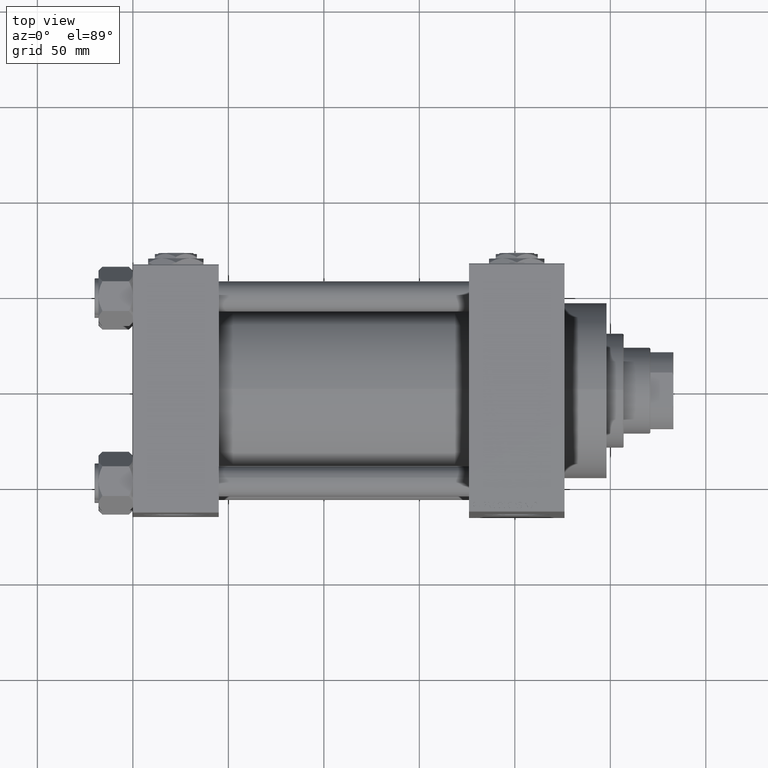
[diagram: clean part render]
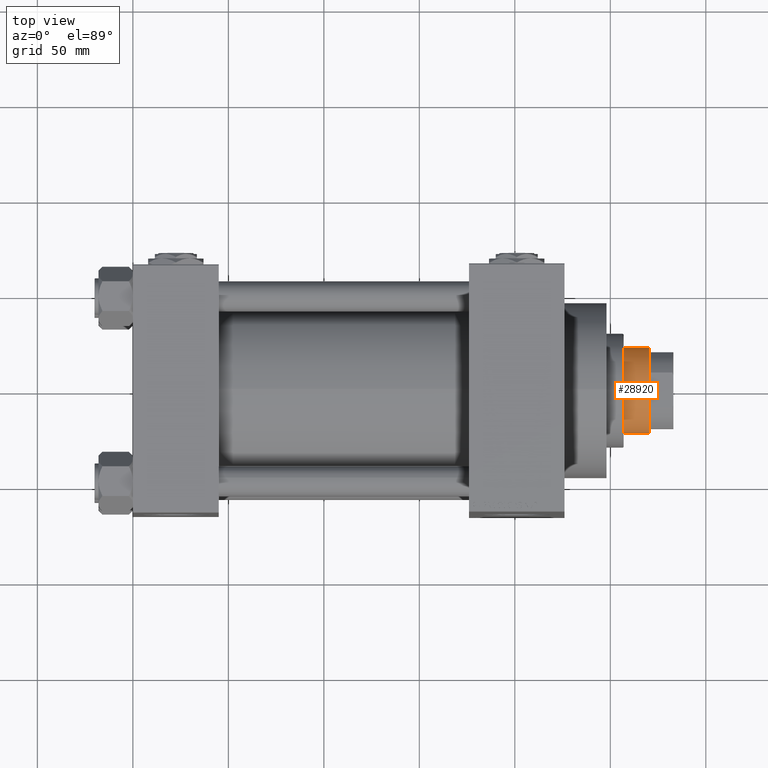
[diagram: same view with one face highlighted and labeled with its STEP entity id]
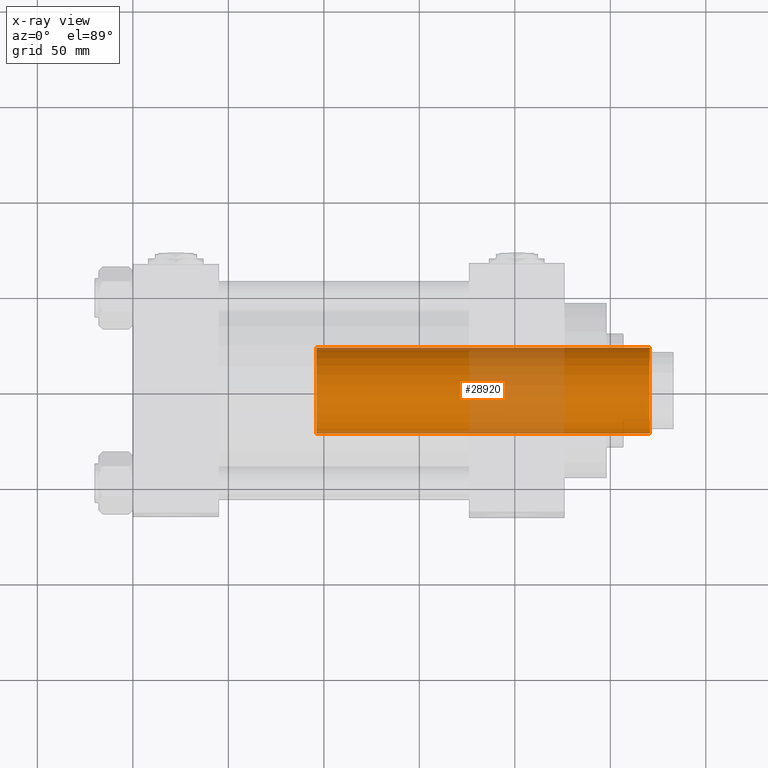
[diagram: x-ray of the same camera — body ghosted, the highlighted face saturated]
A machine part, top view. The second image highlights one B-rep face of the part: STEP entity #28920.
The next image is the same camera in x-ray: the body ghosted, the highlighted face saturated — about 31% of this face is hidden behind the body in this view.
In plain terms, the highlighted cylindrical surface (partial cylindrical patch) has radius 22.5 mm, axis along (-1, 0, 0).
Its self-contained STEP definition (entity closure, byte-faithful):
#2 = ORIENTED_EDGE ( 'NONE', *, *, #2223, .T. ) ;
#178 = DIRECTION ( 'NONE',  ( -0.000000000000000000, -0.000000000000000000, -1.000000000000000000 ) ) ;
#1448 = LINE ( 'NONE', #36069, #4937 ) ;
#2223 = EDGE_CURVE ( 'NONE', #11850, #21926, #45182, .T. ) ;
#2547 = CARTESIAN_POINT ( 'NONE',  ( 0.000000000000000000, 0.000000000000000000, 225.4999999999999716 ) ) ;
#4937 = VECTOR ( 'NONE', #47451, 1000.000000000000000 ) ;
#5231 = LINE ( 'NONE', #12803, #45510 ) ;
#7483 = CARTESIAN_POINT ( 'NONE',  ( 0.000000000000000000, 0.000000000000000000, 225.9999999999999716 ) ) ;
#10090 = CARTESIAN_POINT ( 'NONE',  ( 22.50000000000000355, 2.755455298081545172E-15, 225.4999999999999716 ) ) ;
#10990 = CARTESIAN_POINT ( 'NONE',  ( 22.50000000000000355, 2.755455298081545172E-15, 51.00000000000000000 ) ) ;
#11850 = VERTEX_POINT ( 'NONE', #20935 ) ;
#12803 = CARTESIAN_POINT ( 'NONE',  ( 22.50000000000000355, 2.755455298081545172E-15, 225.9999999999999716 ) ) ;
#14833 = FACE_OUTER_BOUND ( 'NONE', #27380, .T. ) ;
#15208 = EDGE_CURVE ( 'NONE', #43097, #21926, #5231, .T. ) ;
#15645 = VERTEX_POINT ( 'NONE', #43813 ) ;
#17463 = DIRECTION ( 'NONE',  ( 1.000000000000000000, 0.000000000000000000, 0.000000000000000000 ) ) ;
#18514 = AXIS2_PLACEMENT_3D ( 'NONE', #28612, #44052, #40238 ) ;
#19118 = DIRECTION ( 'NONE',  ( -1.000000000000000000, 0.000000000000000000, 0.000000000000000000 ) ) ;
#20891 = DIRECTION ( 'NONE',  ( -0.000000000000000000, -0.000000000000000000, -1.000000000000000000 ) ) ;
#20935 = CARTESIAN_POINT ( 'NONE',  ( -22.50000000000000355, 0.000000000000000000, 51.00000000000000000 ) ) ;
#21926 = VERTEX_POINT ( 'NONE', #10990 ) ;
#24697 = EDGE_CURVE ( 'NONE', #43097, #15645, #38800, .T. ) ;
#26470 = EDGE_CURVE ( 'NONE', #15645, #11850, #1448, .T. ) ;
#26476 = CYLINDRICAL_SURFACE ( 'NONE', #30087, 22.50000000000000355 ) ;
#27380 = EDGE_LOOP ( 'NONE', ( #44721, #43826, #48825, #2 ) ) ;
#27501 = AXIS2_PLACEMENT_3D ( 'NONE', #2547, #33896, #17463 ) ;
#28612 = CARTESIAN_POINT ( 'NONE',  ( 0.000000000000000000, 0.000000000000000000, 51.00000000000000000 ) ) ;
#28920 = ADVANCED_FACE ( 'NONE', ( #14833 ), #26476, .T. ) ;
#30087 = AXIS2_PLACEMENT_3D ( 'NONE', #7483, #178, #19118 ) ;
#33896 = DIRECTION ( 'NONE',  ( 0.000000000000000000, 0.000000000000000000, -1.000000000000000000 ) ) ;
#36069 = CARTESIAN_POINT ( 'NONE',  ( -22.50000000000000355, 0.000000000000000000, 225.9999999999999716 ) ) ;
#38800 = CIRCLE ( 'NONE', #27501, 22.50000000000000355 ) ;
#40238 = DIRECTION ( 'NONE',  ( 1.000000000000000000, 0.000000000000000000, 0.000000000000000000 ) ) ;
#43097 = VERTEX_POINT ( 'NONE', #10090 ) ;
#43813 = CARTESIAN_POINT ( 'NONE',  ( -22.50000000000000355, 0.000000000000000000, 225.4999999999999716 ) ) ;
#43826 = ORIENTED_EDGE ( 'NONE', *, *, #24697, .T. ) ;
#44052 = DIRECTION ( 'NONE',  ( 0.000000000000000000, 0.000000000000000000, 1.000000000000000000 ) ) ;
#44721 = ORIENTED_EDGE ( 'NONE', *, *, #15208, .F. ) ;
#45182 = CIRCLE ( 'NONE', #18514, 22.50000000000000355 ) ;
#45510 = VECTOR ( 'NONE', #20891, 1000.000000000000000 ) ;
#47451 = DIRECTION ( 'NONE',  ( -0.000000000000000000, -0.000000000000000000, -1.000000000000000000 ) ) ;
#48825 = ORIENTED_EDGE ( 'NONE', *, *, #26470, .T. ) ;